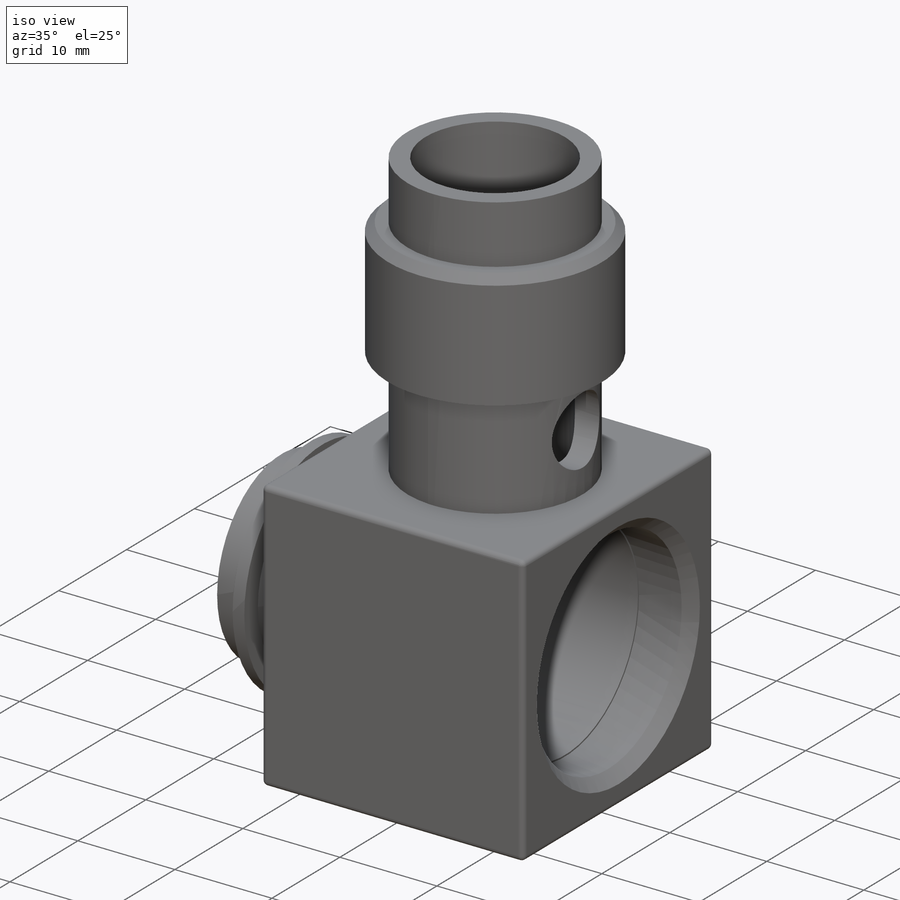
[diagram: iso view]
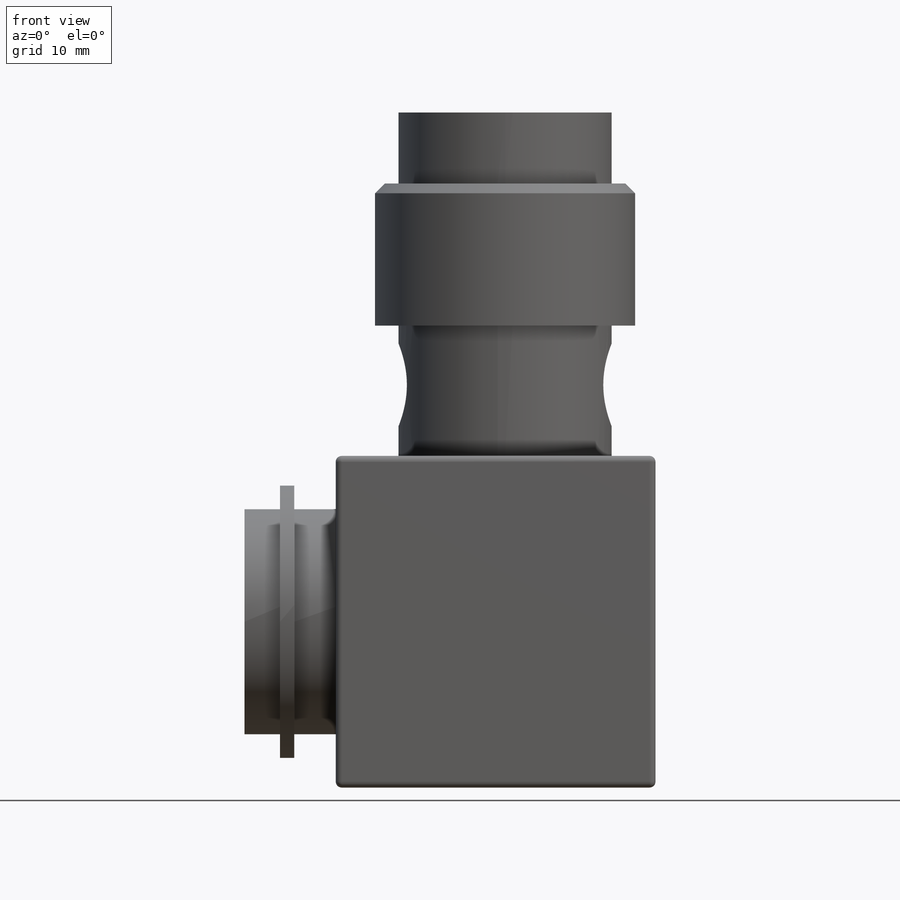
[diagram: front view]
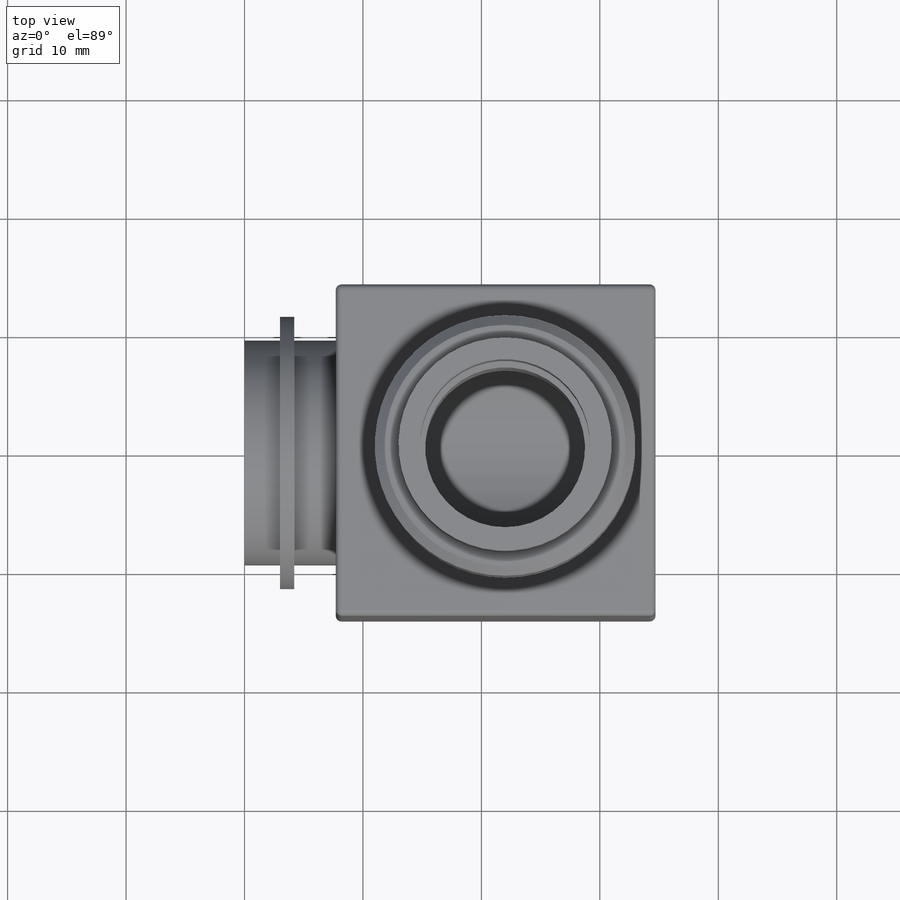
[diagram: top view]
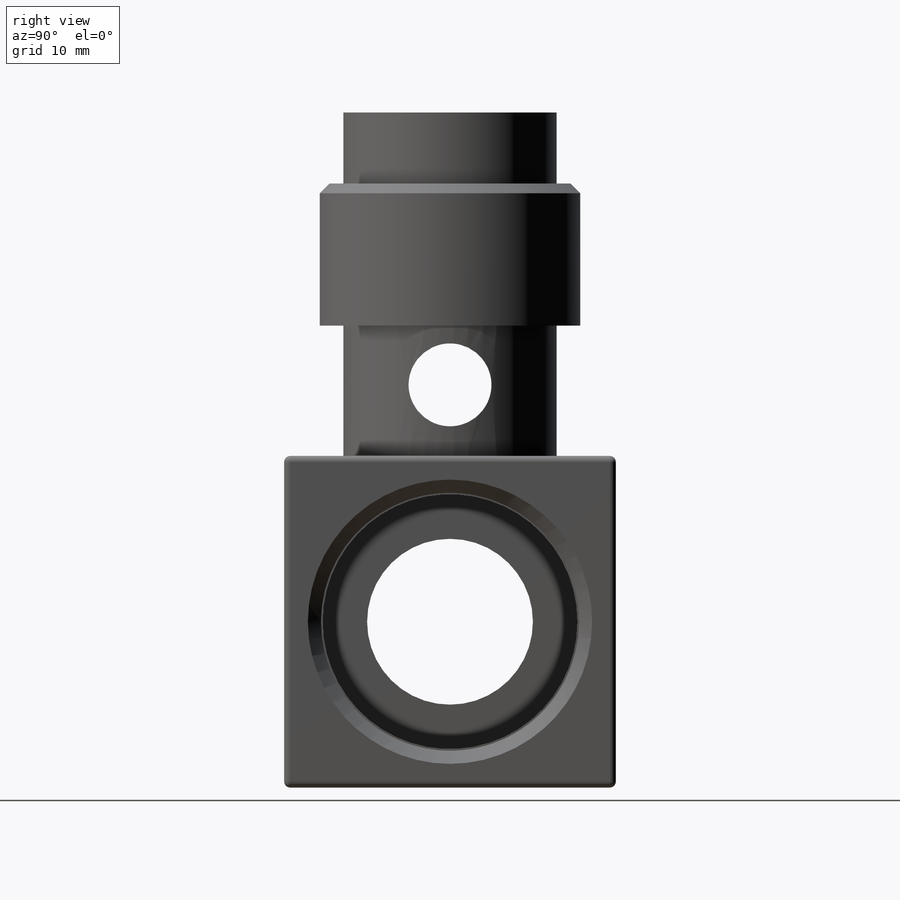
[diagram: right view]
SOLIDWORKS PART (.sldprt)
format: sldprt  version: not decoded by parser v0  size: 486,400 bytes
history: native  units: mm
features: sketch x14, cut_extrude x8, extrude x5, plane x3, thread x3, chamfer x2, material x1, revolve x1, fillet x1 (+9 scaffold rows collapsed)
feature tree (47):
  scaffold x9  (default folders/planes/origin — collapsed)
  material  "Сталь"
  plane  "Спереди"
  plane  "Сверху"
  plane  "Справа"
  sketch  "Эскиз1"  dims[D1=11.6mm D2=7.0mm D3=9.5mm D4=3.0mm D5=2.0mm D6=1.2mm D7=14.0mm D8=27.0mm D9=3.5mm D10=3.5mm]
  revolve  "Повернуть1"  Angle=360deg
  sketch  "Эскиз2"  dims[D1=18.0mm D2=22.0mm]
  extrude  "Бобышка-Вытянуть1"  Depth=25mm
  sketch  "Эскиз3"  dims[D1=22.0mm]
  extrude  "Бобышка-Вытянуть2"  [1 undecoded]
  thread  "Условное изображение резьбы1"  Diameter=20.344mm  [1 undecoded]
  sketch  "Эскиз4"  dims[D1=18.0mm]
  extrude  "Бобышка-Вытянуть3"  Depth=6mm
  sketch  "Эскиз5"  dims[D1=21.5mm]
  cut_extrude  "Вырез-Вытянуть1"  [1 undecoded]
  sketch  "Эскиз6"  dims[D1=17.0mm]
  cut_extrude  "Вырез-Вытянуть2"  Depth=7mm
  sketch  "Эскиз8"  dims[D1=13.5mm]
  cut_extrude  "Вырез-Вытянуть3"  [1 undecoded]
  sketch  "Эскиз9"  dims[D2=7.0mm D1=20.0mm]
  cut_extrude  "Вырез-Вытянуть4"  [1 undecoded]
  sketch  "Эскиз10"
  extrude  "Бобышка-Вытянуть4"  Depth=5.95mm
  chamfer  "Фаска1"  Distance=0.828mm Angle=45deg
  sketch  "Эскиз12"  dims[D1=1.0mm]
  extrude  "Бобышка-Вытянуть5"  [1 undecoded]
  sketch  "Эскиз13"  dims[D1=0.0mm]
  cut_extrude  "Вырез-Вытянуть5"  [1 undecoded]
  sketch  "Эскиз14"  dims[D1=14.344mm]
  cut_extrude  "Вырез-Вытянуть6"  [1 undecoded]
  thread  "Условное изображение резьбы2"  Diameter=16mm  [1 undecoded]
  sketch  "Эскиз16"  dims[D1=21.797mm]
  cut_extrude  "Вырез-Вытянуть7"  [1 undecoded]
  thread  "Условное изображение резьбы3"  Diameter=5.5mm  [1 undecoded]
  chamfer  "Фаска3"  Distance=1.1015mm Angle=45deg
  sketch  "Эскиз18"  dims[D1=0.0mm]
  cut_extrude  "Вырез-Вытянуть11"  [1 undecoded]
  fillet  "Скругление1"  Radius=0.5mm
decode coverage: 24 of 34 modeling features carry decoded parameters
note: 12 parameter values undecoded
summary: no parameter record found for 9 features
note: suppression state not decoded; provenance and decode notes live in map.json
